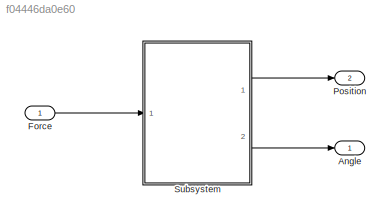
MODEL slx_f04446da0e60
KIND model
CONFIG AbsTol = auto
CONFIG EnableMultiTasking = off
CONFIG FixedStep = auto
CONFIG MaxStep = auto
CONFIG MinStep = auto
CONFIG RelTol = 1e-3
CONFIG SampleTimeConstraint = Unconstrained
CONFIG Solver = VariableStepAuto
CONFIG SolverName = VariableStepAuto
CONFIG StartTime = 0.0
CONFIG StopTime = 10.0
BLOCK [Outport] Angle 
  IconDisplay = Port number
BLOCK [Inport] Force 
  IconDisplay = Port number
BLOCK [Outport] Position 
  IconDisplay = Port number
  Port = 2
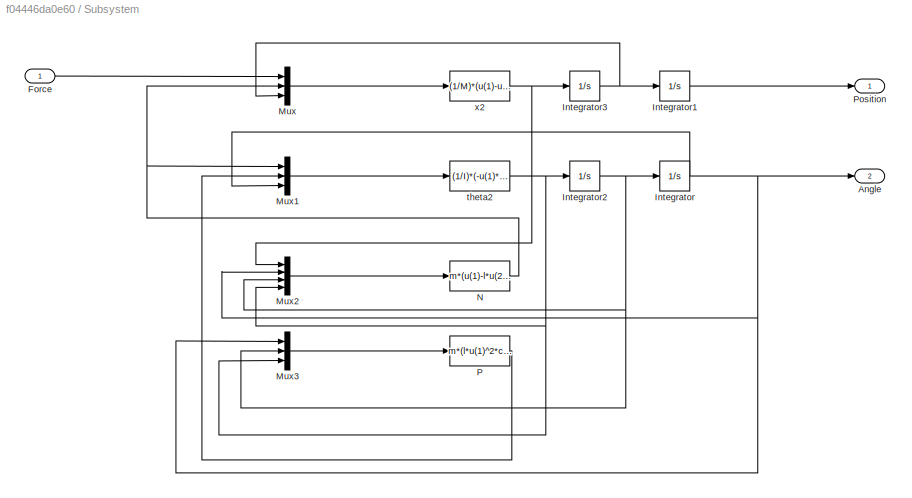
BLOCK [SubSystem] Subsystem
  Ports = [1, 2]
  RequestExecContextInheritance = off
BLOCK [Outport] Subsystem/Angle 
  IconDisplay = Port number
  Port = 2
BLOCK [Inport] Subsystem/Force 
  IconDisplay = Port number
BLOCK [Integrator] Subsystem/Integrator
  ContinuousStateAttributes = 'theta'
  InitialCondition = pi
  Ports = [1, 1]
BLOCK [Integrator] Subsystem/Integrator1
  ContinuousStateAttributes = 'x'
  Ports = [1, 1]
BLOCK [Integrator] Subsystem/Integrator2
  ContinuousStateAttributes = 'theta1'
  Ports = [1, 1]
BLOCK [Integrator] Subsystem/Integrator3
  ContinuousStateAttributes = 'x1'
  Ports = [1, 1]
BLOCK [Mux] Subsystem/Mux
  DisplayOption = bar
  Inputs = 3
  Ports = [3, 1]
BLOCK [Mux] Subsystem/Mux1
  DisplayOption = bar
  Inputs = 3
  Ports = [3, 1]
BLOCK [Mux] Subsystem/Mux2
  DisplayOption = bar
  Ports = [4, 1]
BLOCK [Mux] Subsystem/Mux3
  DisplayOption = bar
  Inputs = 3
  Ports = [3, 1]
BLOCK [Fcn] Subsystem/N
  Expr = m*(u(1)-l*u(2)^2*sin(u(3))+l*u(4)*cos(u(3)))
BLOCK [Fcn] Subsystem/P 
  Expr = m*(l*u(1)^2*cos(u(2))+l*u(3)*sin(u(2))+g)
BLOCK [Outport] Subsystem/Position 
  IconDisplay = Port number
BLOCK [Fcn] Subsystem/theta2 
  Expr = (1/I)*(-u(1)*l*cos(u(3))-u(2)*l*sin(u(3)))
BLOCK [Fcn] Subsystem/x2 
  Expr = (1/M)*(u(1)-u(2)-b*u(3))
LINE Force :1 -> Subsystem:1
LINE Subsystem/Force :1 -> Subsystem/Mux:1
LINE Subsystem/Integrator1:1 -> Subsystem/Position :1
NET Subsystem/Integrator2:1 -> Subsystem/Integrator:1, Subsystem/Mux2:3, Subsystem/Mux3:2
NET Subsystem/Integrator3:1 -> Subsystem/Integrator1:1, Subsystem/Mux:3
NET Subsystem/Integrator:1 -> Subsystem/Angle :1, Subsystem/Mux1:3, Subsystem/Mux2:2, Subsystem/Mux3:1
LINE Subsystem/Mux1:1 -> Subsystem/theta2 :1
LINE Subsystem/Mux2:1 -> Subsystem/N:1
LINE Subsystem/Mux3:1 -> Subsystem/P :1
LINE Subsystem/Mux:1 -> Subsystem/x2 :1
NET Subsystem/N:1 -> Subsystem/Mux1:1, Subsystem/Mux:2
LINE Subsystem/P :1 -> Subsystem/Mux1:2
NET Subsystem/theta2 :1 -> Subsystem/Integrator2:1, Subsystem/Mux2:4, Subsystem/Mux3:3
NET Subsystem/x2 :1 -> Subsystem/Integrator3:1, Subsystem/Mux2:1
LINE Subsystem:1 -> Position :1
LINE Subsystem:2 -> Angle :1
note: NET lines group one-source signal fan-out (src -> all destinations, sorted); 1:1 wires keep LINE
